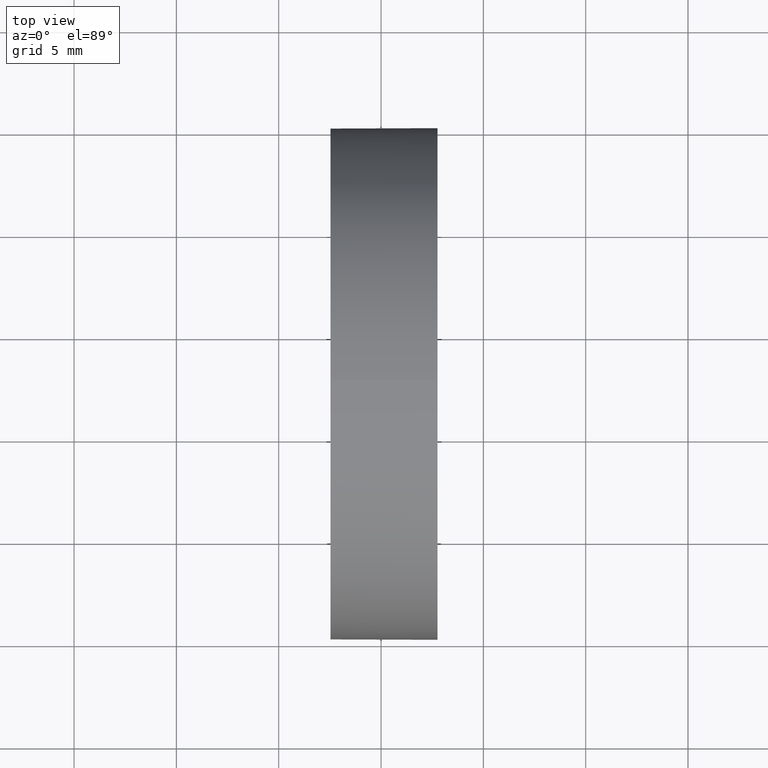
[diagram: clean part render]
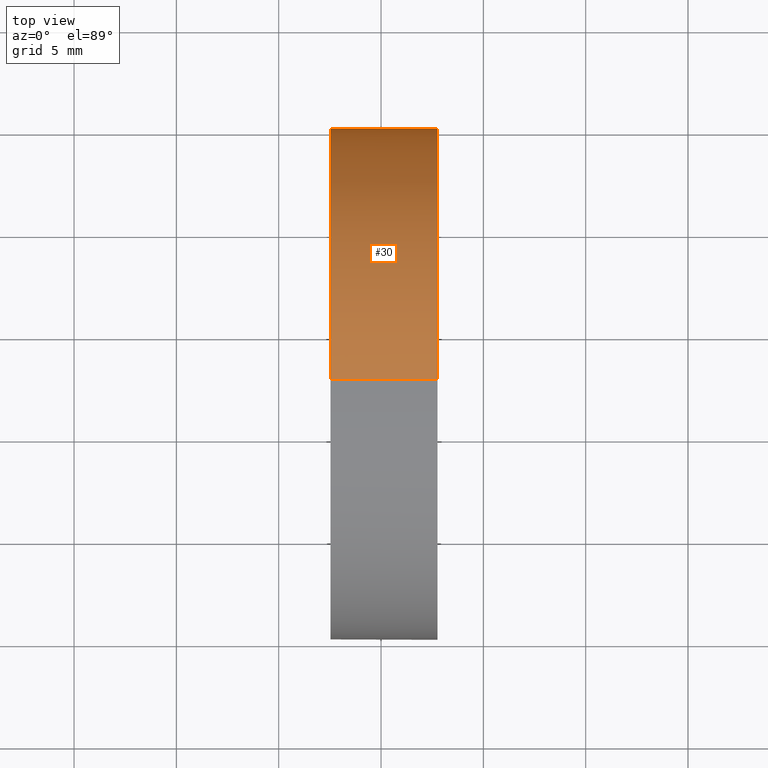
[diagram: same view with one face highlighted and labeled with its STEP entity id]
A machine part, top view. The second image highlights one B-rep face of the part: STEP entity #30.
In plain terms, the highlighted cylindrical surface (partial cylindrical patch) has radius 12.5 mm, axis along (-1, -0, -0).
Its self-contained STEP definition (entity closure, byte-faithful):
#14 = CARTESIAN_POINT ( 'NONE',  ( 56.10091507999716500, 32.61076812922678400, 0.0000000000000000000 ) ) ;
#15 = CARTESIAN_POINT ( 'NONE',  ( 62.75695290809913000, 45.11076812922678400, 1.530808498934191100E-015 ) ) ;
#19 = EDGE_CURVE ( 'NONE', #60, #164, #88, .T. ) ;
#22 = FACE_OUTER_BOUND ( 'NONE', #42, .T. ) ;
#25 = EDGE_CURVE ( 'NONE', #60, #95, #116, .T. ) ;
#29 = CARTESIAN_POINT ( 'NONE',  ( 57.53233705252611700, 32.61076812922678400, 12.49999999999999600 ) ) ;
#30 = ADVANCED_FACE ( 'NONE', ( #22 ), #80, .T. ) ;
#35 = CARTESIAN_POINT ( 'NONE',  ( 62.75695290809913000, 32.61076812922678400, 0.0000000000000000000 ) ) ;
#36 = DIRECTION ( 'NONE',  ( 0.0000000000000000000, 0.0000000000000000000, 1.000000000000000000 ) ) ;
#37 = DIRECTION ( 'NONE',  ( -1.000000000000000000, -0.0000000000000000000, -0.0000000000000000000 ) ) ;
#38 = DIRECTION ( 'NONE',  ( 0.0000000000000000000, 0.0000000000000000000, 1.000000000000000000 ) ) ;
#42 = EDGE_LOOP ( 'NONE', ( #180, #97, #91, #111, #143 ) ) ;
#50 = CARTESIAN_POINT ( 'NONE',  ( 62.75695290809913000, 32.61076812922678400, -12.49999999999999600 ) ) ;
#51 = CARTESIAN_POINT ( 'NONE',  ( 62.75695290809913000, 32.61076812922678400, 12.49999999999999600 ) ) ;
#55 = VERTEX_POINT ( 'NONE', #117 ) ;
#60 = VERTEX_POINT ( 'NONE', #51 ) ;
#68 = DIRECTION ( 'NONE',  ( -1.000000000000000000, -0.0000000000000000000, -0.0000000000000000000 ) ) ;
#80 = CYLINDRICAL_SURFACE ( 'NONE', #124, 12.49999999999999600 ) ;
#82 = AXIS2_PLACEMENT_3D ( 'NONE', #121, #85, #120 ) ;
#85 = DIRECTION ( 'NONE',  ( -1.000000000000000000, -0.0000000000000000000, -0.0000000000000000000 ) ) ;
#86 = DIRECTION ( 'NONE',  ( 0.0000000000000000000, 0.0000000000000000000, 1.000000000000000000 ) ) ;
#88 = LINE ( 'NONE', #174, #153 ) ;
#89 = EDGE_CURVE ( 'NONE', #108, #55, #179, .T. ) ;
#91 = ORIENTED_EDGE ( 'NONE', *, *, #109, .F. ) ;
#94 = AXIS2_PLACEMENT_3D ( 'NONE', #35, #68, #36 ) ;
#95 = VERTEX_POINT ( 'NONE', #15 ) ;
#97 = ORIENTED_EDGE ( 'NONE', *, *, #89, .T. ) ;
#108 = VERTEX_POINT ( 'NONE', #50 ) ;
#109 = EDGE_CURVE ( 'NONE', #164, #55, #141, .T. ) ;
#111 = ORIENTED_EDGE ( 'NONE', *, *, #19, .F. ) ;
#116 = CIRCLE ( 'NONE', #94, 12.49999999999999600 ) ;
#117 = CARTESIAN_POINT ( 'NONE',  ( 57.53233705252611700, 32.61076812922678400, -12.49999999999999600 ) ) ;
#118 = CIRCLE ( 'NONE', #183, 12.49999999999999600 ) ;
#120 = DIRECTION ( 'NONE',  ( 0.0000000000000000000, 0.0000000000000000000, 1.000000000000000000 ) ) ;
#121 = CARTESIAN_POINT ( 'NONE',  ( 57.53233705252611700, 32.61076812922678400, 0.0000000000000000000 ) ) ;
#124 = AXIS2_PLACEMENT_3D ( 'NONE', #14, #133, #86 ) ;
#125 = CARTESIAN_POINT ( 'NONE',  ( 62.75695290809913000, 32.61076812922678400, 0.0000000000000000000 ) ) ;
#133 = DIRECTION ( 'NONE',  ( -1.000000000000000000, -0.0000000000000000000, -0.0000000000000000000 ) ) ;
#136 = DIRECTION ( 'NONE',  ( -1.000000000000000000, -0.0000000000000000000, -0.0000000000000000000 ) ) ;
#138 = EDGE_CURVE ( 'NONE', #95, #108, #118, .T. ) ;
#141 = CIRCLE ( 'NONE', #82, 12.49999999999999600 ) ;
#143 = ORIENTED_EDGE ( 'NONE', *, *, #25, .T. ) ;
#147 = CARTESIAN_POINT ( 'NONE',  ( 56.10091507999716500, 32.61076812922678400, -12.49999999999999600 ) ) ;
#153 = VECTOR ( 'NONE', #37, 1000.000000000000000 ) ;
#154 = VECTOR ( 'NONE', #159, 1000.000000000000000 ) ;
#159 = DIRECTION ( 'NONE',  ( -1.000000000000000000, -0.0000000000000000000, -0.0000000000000000000 ) ) ;
#164 = VERTEX_POINT ( 'NONE', #29 ) ;
#174 = CARTESIAN_POINT ( 'NONE',  ( 56.10091507999716500, 32.61076812922678400, 12.49999999999999600 ) ) ;
#179 = LINE ( 'NONE', #147, #154 ) ;
#180 = ORIENTED_EDGE ( 'NONE', *, *, #138, .T. ) ;
#183 = AXIS2_PLACEMENT_3D ( 'NONE', #125, #136, #38 ) ;